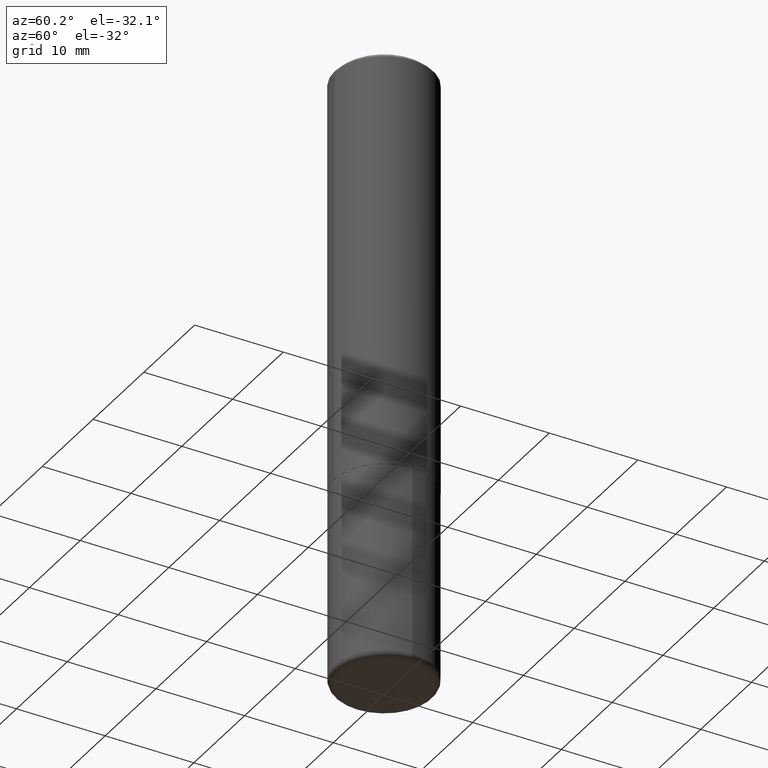
[diagram: clean part render]
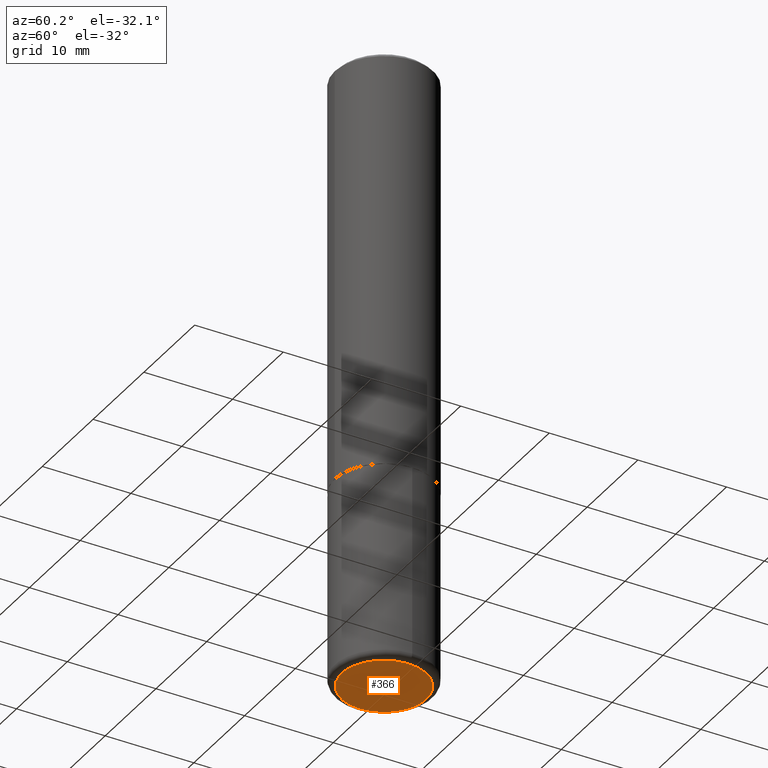
[diagram: same view with one face highlighted and labeled with its STEP entity id]
A machine part, auxiliary view. The second image highlights one B-rep face of the part: STEP entity #366.
In plain terms, the highlighted planar face has unit normal (0, -0, -1).
Its self-contained STEP definition (entity closure, byte-faithful):
#20 = ORIENTED_EDGE ( 'NONE', *, *, #256, .F. ) ;
#37 = CARTESIAN_POINT ( 'NONE',  ( 6.725039217009123399E-29, -9.601573681818648281E-15, -2.749999999999999556 ) ) ;
#67 = DIRECTION ( 'NONE',  ( -1.000000000000000000, 6.982962677686265922E-15, -4.876176775795935793E-29 ) ) ;
#73 = CIRCLE ( 'NONE', #112, 0.1887500000000000011 ) ;
#91 = CARTESIAN_POINT ( 'NONE',  ( -0.1887500000000000011, -8.101470637624799929E-15, -2.749999999999999556 ) ) ;
#92 = CIRCLE ( 'NONE', #117, 0.1887500000000000011 ) ;
#102 = FACE_OUTER_BOUND ( 'NONE', #246, .T. ) ;
#112 = AXIS2_PLACEMENT_3D ( 'NONE', #37, #326, #225 ) ;
#117 = AXIS2_PLACEMENT_3D ( 'NONE', #133, #263, #203 ) ;
#133 = CARTESIAN_POINT ( 'NONE',  ( 6.725039217009123399E-29, -9.601573681818648281E-15, -2.749999999999999556 ) ) ;
#178 = VERTEX_POINT ( 'NONE', #266 ) ;
#202 = DIRECTION ( 'NONE',  ( 2.438088387897960049E-29, -3.491481338843145188E-15, -1.000000000000000000 ) ) ;
#203 = DIRECTION ( 'NONE',  ( 1.000000000000000000, -6.982962677686272233E-15, 0.000000000000000000 ) ) ;
#206 = AXIS2_PLACEMENT_3D ( 'NONE', #417, #202, #67 ) ;
#219 = VERTEX_POINT ( 'NONE', #91 ) ;
#225 = DIRECTION ( 'NONE',  ( 1.000000000000000000, -6.982962677686272233E-15, 0.000000000000000000 ) ) ;
#228 = PLANE ( 'NONE',  #206 ) ;
#246 = EDGE_LOOP ( 'NONE', ( #20, #270 ) ) ;
#256 = EDGE_CURVE ( 'NONE', #178, #219, #73, .T. ) ;
#263 = DIRECTION ( 'NONE',  ( -2.445468806185136597E-29, 3.491481338843145583E-15, 1.000000000000000000 ) ) ;
#266 = CARTESIAN_POINT ( 'NONE',  ( 0.1887500000000000011, -1.091960788723193160E-14, -2.749999999999999556 ) ) ;
#270 = ORIENTED_EDGE ( 'NONE', *, *, #403, .F. ) ;
#326 = DIRECTION ( 'NONE',  ( -2.445468806185136597E-29, 3.491481338843145583E-15, 1.000000000000000000 ) ) ;
#366 = ADVANCED_FACE ( 'NONE', ( #102 ), #228, .T. ) ;
#403 = EDGE_CURVE ( 'NONE', #219, #178, #92, .T. ) ;
#417 = CARTESIAN_POINT ( 'NONE',  ( 1.228372314785856208E-28, -1.641221912200929740E-15, -2.750000000000000000 ) ) ;